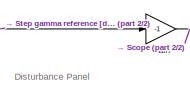
[diagram: root canvas - part 1/2, top center region]
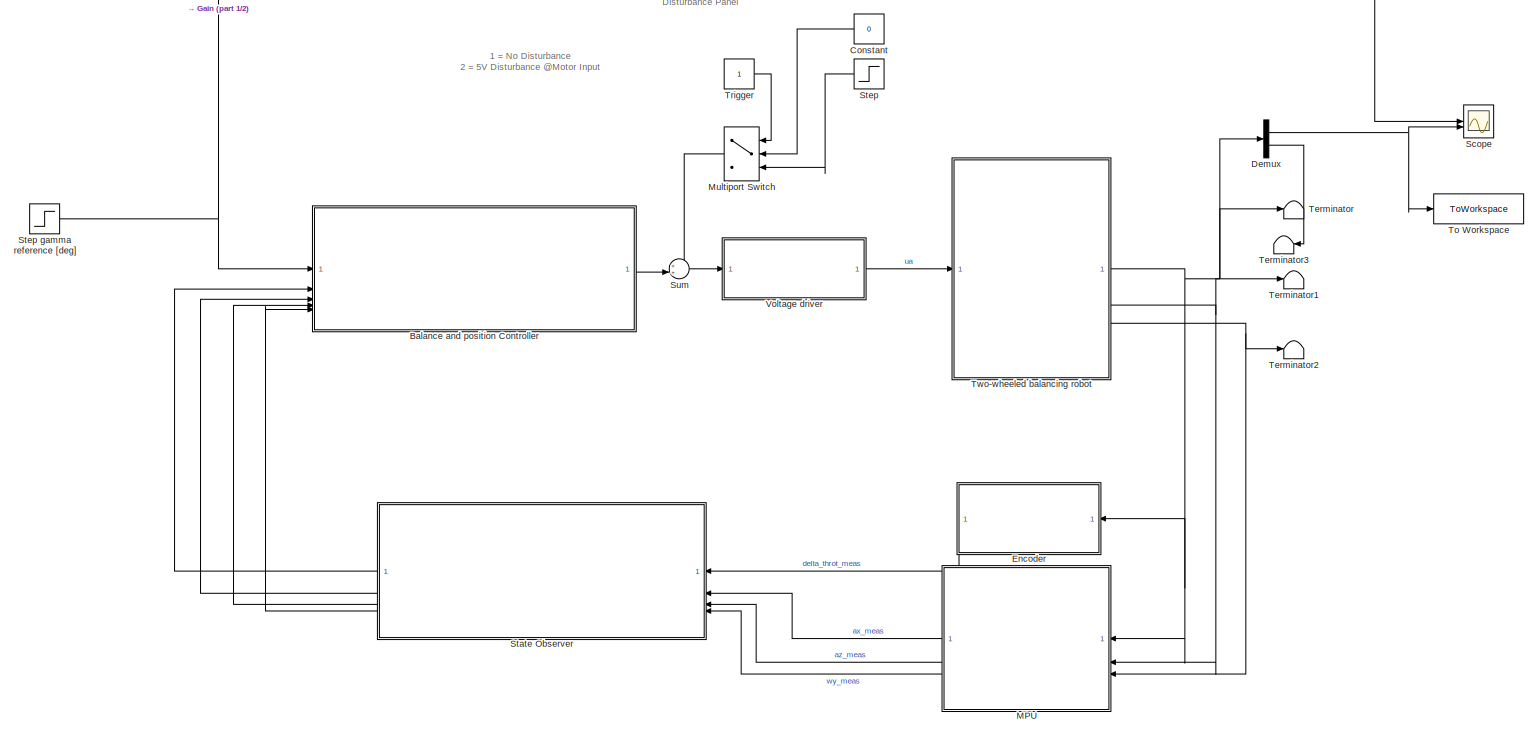
[diagram: root canvas - part 2/2, most of the canvas]
MODEL slx_9d568bbfd4f6
KIND model
CONFIG AbsTol = auto
CONFIG EnableMultiTasking = off
CONFIG FixedStep = auto
CONFIG MaxStep = auto
CONFIG MinStep = auto
CONFIG RelTol = 1e-3
CONFIG SampleTimeConstraint = Unconstrained
CONFIG SolverName = VariableStepAuto
CONFIG StartTime = 0.0
CONFIG StopTime = 150
BLOCK [SubSystem] Balance and position Controller
  ReferencedSubsystem = Model_LAB4_controller_nomtracking
BLOCK [Constant] Constant
  Value = 0
BLOCK [Demux] Demux
  Outputs = 2
BLOCK [SubSystem] Encoder
  NameLocation = top
  ReferencedSubsystem = Encoder_balrob
BLOCK [Gain] Gain
  Gain = -1
BLOCK [SubSystem] MPU
  ReferencedSubsystem = MotionProcessingUnit
BLOCK [MultiPortSwitch] Multiport Switch
  InputSameDT = off
  Inputs = 2
  SaturateOnIntegerOverflow = off
BLOCK [Scope] Scope
  Floating = off
  NumInputPorts = 2
  ScopeSpecificationString = Simulink.scopes.TimeScopeBlockCfg('CurrentConfiguration', extmgr.ConfigurationSet(extmgr.Configuration('Core','General UI',true),extmgr.Configuration('Core','Source UI',true),extmgr.Configuration('Sources','WiredSimulink',true),extmgr.Configuration('Visuals','Time Domain',true,'SerializedDisplays',{struct('MinYLimReal','-2836.02824','MaxYLimReal','3508.89726','YLabelReal','','MinYLimMag','  0.0000...<+1493ch>
BLOCK [SubSystem] State Observer
  ReferencedSubsystem = SimpleStateObserver
BLOCK [Step] Step
  After = 5/drv.duty2V
  SampleTime = 0
  Time = 10
BLOCK [Step] Step gamma reference [deg]
  After = 168.517
  SampleTime = 0
  Time = 0
BLOCK [Sum] Sum
  Inputs = ++|
BLOCK [Terminator] Terminator
BLOCK [Terminator] Terminator1
BLOCK [Terminator] Terminator2
BLOCK [Terminator] Terminator3
BLOCK [ToWorkspace] To Workspace
  FixptAsFi = on
  MaxDataPoints = inf
  SampleTime = -1
  SaveFormat = Timeseries
  VariableName = gamma_out
BLOCK [Constant] Trigger
BLOCK [SubSystem] Two-wheeled balancing robot
  ReferencedSubsystem = ElectromechanicalDynamics
BLOCK [SubSystem] Voltage driver
  ReferencedSubsystem = VoltageDriver_balrob
ANNOTATION (root): 1 = No Disturbance 2 = 5V Disturbance @Motor Input
ANNOTATION (root): Disturbance Panel
LINE Balance and position Controller:1 -> Sum:2
LINE Constant:1 -> Multiport Switch:2
NET Demux:1 -> Scope:2, To Workspace:1
LINE Demux:2 -> Terminator3:1
LINE Encoder:1 -> State Observer:1
LINE Gain:1 -> Scope:1
LINE MPU:1 -> State Observer:2
LINE MPU:2 -> State Observer:3
LINE MPU:3 -> State Observer:4
LINE Multiport Switch:1 -> Sum:1
LINE State Observer:1 -> Balance and position Controller:2
LINE State Observer:2 -> Balance and position Controller:3
LINE State Observer:3 -> Balance and position Controller:4
LINE State Observer:4 -> Balance and position Controller:5
NET Step gamma reference [deg]:1 -> Balance and position Controller:1, Gain:1
LINE Step:1 -> Multiport Switch:3
LINE Sum:1 -> Voltage driver:1
LINE Trigger:1 -> Multiport Switch:1
NET Two-wheeled balancing robot:1 -> Demux:1, Encoder:1, MPU:1, Terminator:1
NET Two-wheeled balancing robot:2 -> MPU:2, Terminator1:1
NET Two-wheeled balancing robot:3 -> MPU:3, Terminator2:1
LINE Voltage driver:1 -> Two-wheeled balancing robot:1
note: NET lines group one-source signal fan-out (src -> all destinations, sorted); 1:1 wires keep LINE
